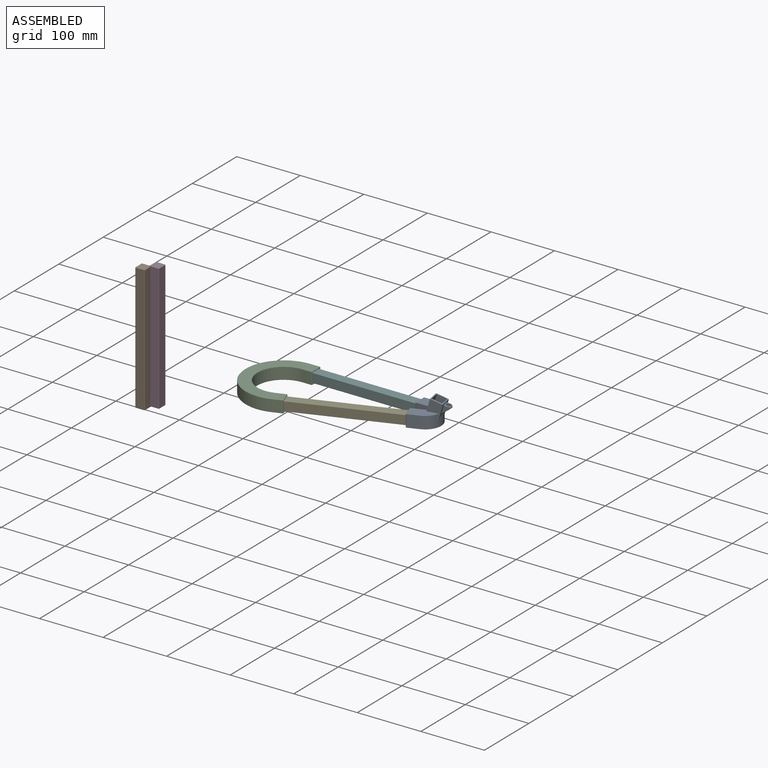
[diagram: assembled view]
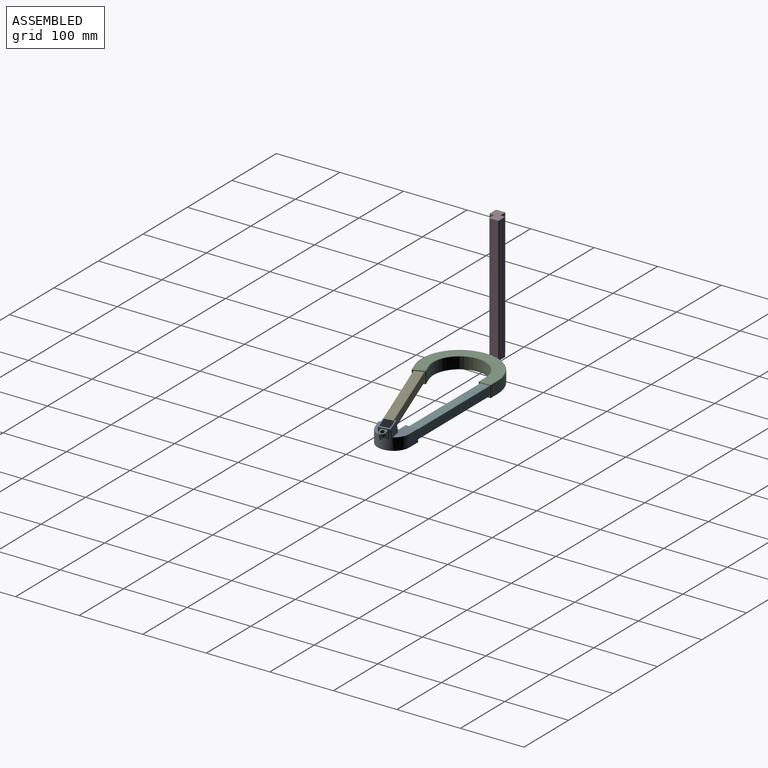
[diagram: assembled view, second angle]
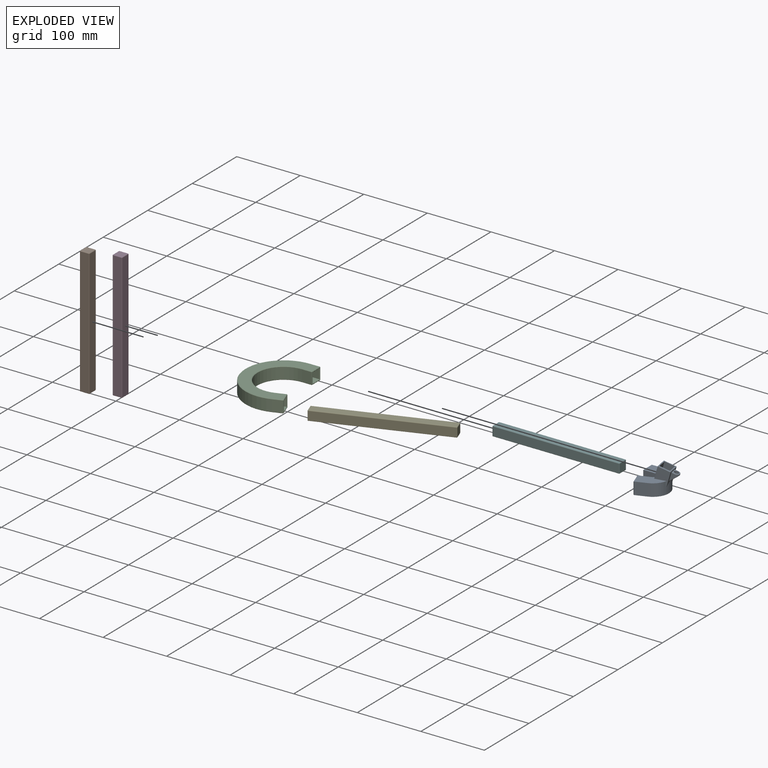
[diagram: exploded view]
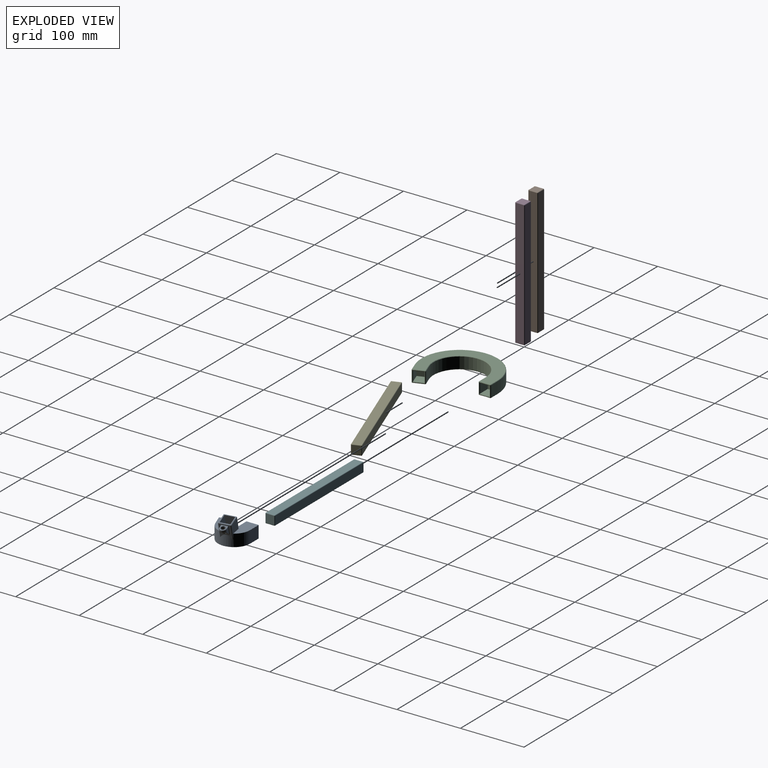
[diagram: exploded view, second angle]
ASSEMBLY  parts=6 mates=3
PART A: 85 faces, bbox 58.4x55.4x38.5 mm
  f0: cylinder r=25.2mm len=48.88mm, axis (0,0,-1), area 1243.4mm2, adj f1,f5,f6,f8,f9,f64,f65,f66
  f1: plane 40.31x22.35mm, normal (0,0,1), area 600.1mm2, adj f0,f6,f7,f20,f34,f35,f36,f44
  f2: plane 18x16.91mm, normal (-0.94,-0.34,0), area 86.8mm2, adj f15,f16,f17,f18,f47,f48,f49,f50
  f3: plane 18x18mm, normal (-1,0,0), area 86.8mm2, adj f10,f11,f12,f13,f43,f44,f45,f46
  f4: plane 19.2x17.5mm, normal (-0.34,0.94,0), area 357.5mm2, adj f8,f9,f20,f49
  f5: plane 19.2x17.5mm, normal (0.34,-0.94,0), area 357.5mm2, adj f0,f8,f9,f48
  f6: plane 19.24x19.2mm, normal (0,1,0), area 369.3mm2, adj f0,f1,f9,f46
  f7: plane 19.24x19.2mm, normal (0,-1,0), area 369.3mm2, adj f1,f9,f20,f43
  f8: plane 39.99x29.17mm, normal (0,0,1), area 588.3mm2, adj f0,f4,f5,f20,f31,f32,f33,f47
  f9: plane 55.25x44.44mm, normal (0,0,-1), area 1563.3mm2, adj f0,f4,f5,f6,f7,f20,f45,f50
  f10: plane 19.6x15.4mm, normal (0,0,1), area 301.8mm2, adj f3,f11,f13,f14
  f11: plane 19.6x15.4mm, normal (0,1,0), area 301.8mm2, adj f3,f10,f12,f14
  f12: plane 19.6x15.4mm, normal (0,0,-1), area 301.8mm2, adj f3,f11,f13,f14
  f13: plane 19.6x15.4mm, normal (0,-1,0), area 301.8mm2, adj f3,f10,f12,f14
  f14: plane 15.4x15.4mm, normal (-1,0,0), area 237.2mm2, adj f10,f11,f12,f13
  f15: plane 22.18x20.63mm, normal (0,0,1), area 277.2mm2, adj f2,f16,f18,f19
  f16: plane 16.91x15.4mm, normal (-0.34,0.94,0), area 277.2mm2, adj f2,f15,f17,f19
  f17: plane 22.18x20.63mm, normal (0,0,-1), area 277.2mm2, adj f2,f16,f18,f19
  f18: plane 16.91x15.4mm, normal (0.34,-0.94,0), area 277.2mm2, adj f2,f15,f17,f19
  f19: plane 15.4x14.47mm, normal (-0.94,-0.34,0), area 237.2mm2, adj f15,f16,f17,f18
  f20: cylinder r=6mm len=19.2mm, axis (0,0,1), area 321.7mm2, adj f1,f4,f7,f8,f9,f30,f37
  f21: plane 18.88x17.94mm, normal (-0.95,-0.17,0.26), area 328.8mm2, adj f27,f29,f30,f31,f36,f37,f54
  f22: plane 21.59x17.94mm, normal (0.95,0.17,-0.26), area 142.4mm2, adj f26,f28,f55,f66,f72,f74,f75,f78
  f23: plane 20.62x20.12mm, normal (0.25,0.04,0.97), area 89.8mm2, adj f38,f39,f40,f41,f51,f52,f53,f54
  f24: plane 21.77x21.13mm, normal (0.17,-0.98,0), area 284.1mm2, adj f28,f29,f33,f51,f68
  f25: plane 21.77x21.13mm, normal (-0.17,0.98,0), area 284.1mm2, adj f26,f27,f34,f58,f64
  f26: cylinder r=1mm len=22.34mm, axis (0.25,0.04,0.97), area 33.8mm2, adj f22,f25,f57,f65
  f27: cylinder r=1mm len=18.7mm, axis (-0.25,-0.04,-0.97), area 29.7mm2, adj f21,f25,f35,f56
  f28: cylinder r=1mm len=22.34mm, axis (-0.25,-0.04,-0.97), area 33.8mm2, adj f22,f24,f53,f67
  f29: cylinder r=1mm len=18.7mm, axis (0.25,0.04,0.97), area 29.7mm2, adj f21,f24,f32,f52
  f30: bspline ~2.19x0.47mm, area 0.3mm2, adj f20,f21,f31
  f31: cylinder r=0.4mm len=6.67mm, axis (0.17,-0.98,0), area 3.5mm2, adj f8,f21,f30,f32
  f32: bspline ~1.94x1.39mm, area 1mm2, adj f8,f29,f31,f33
  f33: cylinder r=0.4mm len=16.63mm, axis (-0.98,-0.17,0), area 10.3mm2, adj f8,f24,f32,f68
  f34: cylinder r=0.4mm len=16.63mm, axis (0.98,0.17,0), area 10.3mm2, adj f1,f25,f35,f64
  f35: bspline ~1.91x1.27mm, area 1.1mm2, adj f1,f27,f34,f36
  f36: cylinder r=0.4mm len=6.67mm, axis (0.17,-0.98,0), area 3.5mm2, adj f1,f21,f35,f37
  f37: bspline ~2.17x0.77mm, area 0.3mm2, adj f20,f21,f36
  f38: plane 20.28x16.01mm, normal (-0.95,-0.17,0.26), area 321.3mm2, adj f23,f39,f41,f42
  f39: plane 24.24x19.91mm, normal (0.17,-0.98,0), area 321.3mm2, adj f23,f38,f40,f42
  f40: plane 20.28x16.01mm, normal (0.95,0.17,-0.26), area 321.3mm2, adj f23,f39,f41,f42
  f41: plane 24.24x19.91mm, normal (-0.17,0.98,0), area 321.3mm2, adj f23,f38,f40,f42
  f42: plane 17.63x17.21mm, normal (0.25,0.04,0.97), area 234.1mm2, adj f38,f39,f40,f41
  f43: plane 19.2x0.6mm, normal (-0.71,-0.71,0), area 15.8mm2, adj f3,f7,f44,f45
  f44: plane 19.2x0.6mm, normal (-0.71,0,0.71), area 15.8mm2, adj f1,f3,f43,f46
  f45: plane 19.2x0.6mm, normal (-0.71,0,-0.71), area 15.8mm2, adj f3,f9,f43,f46
  f46: plane 19.2x0.6mm, normal (-0.71,0.71,0), area 15.8mm2, adj f3,f6,f44,f45
  f47: plane 18.04x6.93mm, normal (-0.66,-0.24,0.71), area 15.8mm2, adj f2,f8,f48,f49
  f48: plane 19.2x0.77mm, normal (-0.42,-0.91,0), area 15.8mm2, adj f2,f5,f47,f50
  f49: plane 19.2x0.77mm, normal (-0.91,0.42,0), area 15.8mm2, adj f2,f4,f47,f50
  f50: plane 18.04x6.93mm, normal (-0.66,-0.24,-0.71), area 15.8mm2, adj f2,f9,f48,f49
  f51: plane 16.41x5.03mm, normal (0.3,-0.66,0.68), area 14.6mm2, adj f23,f24,f52,f53
  f52: cone r=0.4mm half-angle=45deg, axis (-0.25,-0.04,-0.97), area 0.9mm2, adj f23,f29,f51,f54
  f53: cone r=0.4mm half-angle=45deg, axis (-0.25,-0.04,-0.97), area 0.9mm2, adj f23,f28,f51,f55
  f54: plane 17.07x3.71mm, normal (-0.49,-0.09,0.87), area 14.6mm2, adj f21,f23,f52,f56
  f55: plane 17.01x3.4mm, normal (0.85,0.15,0.5), area 14.6mm2, adj f22,f23,f53,f57
  f56: cone r=0.4mm half-angle=45deg, axis (-0.25,-0.04,-0.97), area 0.9mm2, adj f23,f27,f54,f58
  f57: cone r=0.4mm half-angle=45deg, axis (-0.25,-0.04,-0.97), area 0.9mm2, adj f23,f26,f55,f58
  f58: plane 16.62x5.03mm, normal (0.06,0.73,0.68), area 14.6mm2, adj f23,f25,f56,f57
  f59: plane 10.55x6.59mm, normal (-0.17,0.98,0), area 34.1mm2, adj f62,f73,f79,f80
  f60: plane 9.4x8.82mm, normal (0.25,0.04,0.97), area 29.3mm2, adj f63,f76,f77,f80,f83
  f61: plane 10.55x6.59mm, normal (0.17,-0.98,0), area 34.1mm2, adj f62,f71,f77,f78
  f62: cylinder r=5.2mm len=10.59mm, axis (0.25,0.04,0.97), area 46mm2, adj f59,f61,f70,f76
  f63: cylinder r=3.4mm len=13.35mm, axis (0.25,0.04,0.97), area 148.5mm2, adj f60,f84
  f64: cylinder r=1mm len=3.69mm, axis (0,0,-1), area 4mm2, adj f0,f1,f25,f34,f65
  f65: bspline ~6.58x1.99mm, area 4.3mm2, adj f0,f26,f64,f66
  f66: bspline ~16.94x5.67mm, area 6.9mm2, adj f0,f22,f65,f67
  f67: bspline ~6.58x2.28mm, area 4.3mm2, adj f0,f28,f66,f68
  f68: cylinder r=1mm len=3.69mm, axis (0,0,-1), area 4mm2, adj f0,f8,f24,f33,f67
  f69: plane 12.9x9.93mm, normal (0.56,0.1,-0.82), area 32.6mm2, adj f70,f71,f72,f73,f84
  f70: bspline ~10.36x7.25mm, area 16.4mm2, adj f62,f69,f71,f73
  f71: cylinder r=0.8mm len=6.89mm, axis (0.81,0.14,0.57), area 9mm2, adj f61,f69,f70,f74
  f72: cylinder r=0.8mm len=8.72mm, axis (-0.17,0.98,0), area 4.9mm2, adj f22,f69,f74,f75
  f73: cylinder r=0.8mm len=7.15mm, axis (-0.81,-0.14,-0.57), area 9mm2, adj f59,f69,f70,f75
  f74: bspline ~2.82x1.76mm, area 2.4mm2, adj f22,f71,f72,f78
  f75: bspline ~2.4x1.69mm, area 2.4mm2, adj f22,f72,f73,f79
  f76: torus R=4.4mm, axis (0.25,0.04,0.97), area 19.4mm2, adj f60,f62,f77,f80
  f77: cylinder r=0.8mm len=3.91mm, axis (-0.95,-0.17,0.26), area 5mm2, adj f60,f61,f76,f81
  f78: cylinder r=0.8mm len=10.75mm, axis (-0.25,-0.04,-0.97), area 13.7mm2, adj f22,f61,f74,f81
  f79: cylinder r=0.8mm len=10.75mm, axis (0.25,0.04,0.97), area 13.7mm2, adj f22,f59,f75,f82
  f80: cylinder r=0.8mm len=4.15mm, axis (-0.95,-0.17,0.26), area 5mm2, adj f59,f60,f76,f82
  f81: torus R=1.6mm, axis (0.95,0.17,-0.26), area 2.2mm2, adj f22,f77,f78,f83
  f82: torus R=1.6mm, axis (0.95,0.17,-0.26), area 2.2mm2, adj f22,f79,f80,f83
  f83: cylinder r=0.8mm len=8.77mm, axis (0.17,-0.98,0), area 11.1mm2, adj f22,f60,f81,f82
  f84: bspline ~10.63x8.47mm, area 38.9mm2, adj f63,f69
PART B: 26 faces, bbox 15x15x200 mm
  f0: plane 198.4x13.4mm, normal (1,0,0), area 2658.6mm2, adj f14,f19,f22,f25
  f1: plane 198.4x13.4mm, normal (0,1,0), area 2658.6mm2, adj f11,f20,f21,f25
  f2: plane 198.4x13.4mm, normal (-1,0,0), area 2658.6mm2, adj f6,f10,f11,f12
  f3: plane 198.4x13.4mm, normal (0,-1,0), area 2658.6mm2, adj f6,f9,f13,f14
  f4: plane 13.4x13.4mm, normal (0,0,1), area 179.6mm2, adj f9,f10,f19,f20
  f5: plane 13.4x13.4mm, normal (0,0,-1), area 179.6mm2, adj f12,f13,f21,f22
  f6: cylinder r=0.8mm len=198.4mm, axis (0,0,-1), area 249.3mm2, adj f2,f3,f7,f8
  f7: sphere r=0.8mm, area 1mm2, adj f6,f9,f10
  f8: sphere r=0.8mm, area 1mm2, adj f6,f12,f13
  f9: cylinder r=0.8mm len=13.4mm, axis (-1,0,0), area 16.8mm2, adj f3,f4,f7,f15
  f10: cylinder r=0.8mm len=13.4mm, axis (0,1,0), area 16.8mm2, adj f2,f4,f7,f16
  f11: cylinder r=0.8mm len=198.4mm, axis (0,0,1), area 249.3mm2, adj f1,f2,f16,f17
  f12: cylinder r=0.8mm len=13.4mm, axis (0,-1,0), area 16.8mm2, adj f2,f5,f8,f17
  f13: cylinder r=0.8mm len=13.4mm, axis (1,0,0), area 16.8mm2, adj f3,f5,f8,f18
  f14: cylinder r=0.8mm len=198.4mm, axis (0,0,1), area 249.3mm2, adj f0,f3,f15,f18
  f15: sphere r=0.8mm, area 1mm2, adj f9,f14,f19
  f16: sphere r=0.8mm, area 1mm2, adj f10,f11,f20
  f17: sphere r=0.8mm, area 1mm2, adj f11,f12,f21
  f18: sphere r=0.8mm, area 1mm2, adj f13,f14,f22
  f19: cylinder r=0.8mm len=13.4mm, axis (0,-1,0), area 16.8mm2, adj f0,f4,f15,f23
  f20: cylinder r=0.8mm len=13.4mm, axis (1,0,0), area 16.8mm2, adj f1,f4,f16,f23
  f21: cylinder r=0.8mm len=13.4mm, axis (-1,0,0), area 16.8mm2, adj f1,f5,f17,f24
  f22: cylinder r=0.8mm len=13.4mm, axis (0,1,0), area 16.8mm2, adj f0,f5,f18,f24
  f23: sphere r=0.8mm, area 1mm2, adj f19,f20,f25
  f24: sphere r=0.8mm, area 1mm2, adj f21,f22,f25
  f25: cylinder r=0.8mm len=198.4mm, axis (0,0,-1), area 249.3mm2, adj f0,f1,f23,f24
PART C: 63 faces, bbox 97.9x124.8x19.2 mm
  f0: plane 118.8x94.19mm, normal (0,0,-1), area 1295.4mm2, adj f27,f28,f33,f38,f42,f44,f46,f47
  f1: plane 18x16.91mm, normal (0.94,0.34,0), area 48.4mm2, adj f25,f26,f37,f38,f48,f49,f50,f51
  f2: plane 18x18mm, normal (1,0,0), area 48.4mm2, adj f34,f35,f42,f43,f52,f53,f54,f55
  f3: cylinder r=40.8mm len=81.6mm, axis (0,0,-1), area 2563.5mm2, adj f7,f8,f21,f28
  f4: cylinder r=60mm len=120mm, axis (0,0,-1), area 3769.9mm2, adj f6,f9,f30,f46
  f5: plane 118.8x94.19mm, normal (0,0,1), area 3721.1mm2, adj f20,f21,f23,f24,f25,f30,f35,f36
  f6: plane 18x15.4mm, normal (0,1,0), area 277.2mm2, adj f4,f36,f43,f47
  f7: plane 18x15.4mm, normal (0,-1,0), area 277.2mm2, adj f3,f23,f33,f34
  f8: plane 18x14.47mm, normal (-0.34,0.94,0), area 277.2mm2, adj f3,f20,f26,f27
  f9: plane 18x14.47mm, normal (0.34,-0.94,0), area 277.2mm2, adj f4,f24,f37,f44
  f10: plane 17.4x15.4mm, normal (0,0,-1), area 268mm2, adj f11,f13,f14,f54
  f11: plane 17.4x15.4mm, normal (0,1,0), area 268mm2, adj f10,f12,f14,f52
  f12: plane 17.4x15.4mm, normal (0,0,1), area 268mm2, adj f11,f13,f14,f53
  f13: plane 17.4x15.4mm, normal (0,-1,0), area 268mm2, adj f10,f12,f14,f55
  f14: plane 15.4x15.4mm, normal (1,0,0), area 237.2mm2, adj f10,f11,f12,f13
  f15: plane 21.62x20.42mm, normal (0,0,-1), area 268mm2, adj f16,f18,f19,f50
  f16: plane 16.35x15.4mm, normal (-0.34,0.94,0), area 268mm2, adj f15,f17,f19,f48
  f17: plane 21.62x20.42mm, normal (0,0,1), area 268mm2, adj f16,f18,f19,f49
  f18: plane 16.35x15.4mm, normal (0.34,-0.94,0), area 268mm2, adj f15,f17,f19,f51
  f19: plane 15.4x14.47mm, normal (0.94,0.34,0), area 237.2mm2, adj f15,f16,f17,f18
  f20: plane 14.68x5.83mm, normal (-0.24,0.66,0.71), area 13.1mm2, adj f5,f8,f21,f22
  f21: cone r=40.8mm half-angle=45deg, axis (0,0,1), area 121.7mm2, adj f3,f5,f20,f23
  f22: plane 0.77x0.6mm, normal (0.35,0.74,0.58), area 0.3mm2, adj f20,f25,f26
  f23: plane 15.4x0.6mm, normal (0,-0.71,0.71), area 13.1mm2, adj f5,f7,f21,f29
  f24: plane 14.68x5.83mm, normal (0.24,-0.66,0.71), area 13.1mm2, adj f5,f9,f30,f31
  f25: plane 17.12x6.72mm, normal (0.66,0.24,0.71), area 15.3mm2, adj f1,f5,f22,f31
  f26: plane 18x0.77mm, normal (0.42,0.91,0), area 15.3mm2, adj f1,f8,f22,f32
  f27: plane 14.68x5.83mm, normal (-0.24,0.66,-0.71), area 13.1mm2, adj f0,f8,f28,f32
  f28: cone r=41.4mm half-angle=45deg, axis (0,0,-1), area 121.7mm2, adj f0,f3,f27,f33
  f29: plane 0.6x0.6mm, normal (0.58,-0.58,0.58), area 0.3mm2, adj f23,f34,f35
  f30: cone r=59.4mm half-angle=45deg, axis (0,0,-1), area 176.8mm2, adj f4,f5,f24,f36
  f31: plane 0.77x0.6mm, normal (0.74,-0.35,0.58), area 0.3mm2, adj f24,f25,f37
  f32: plane 0.77x0.6mm, normal (0.35,0.74,-0.58), area 0.3mm2, adj f26,f27,f38
  f33: plane 15.4x0.6mm, normal (0,-0.71,-0.71), area 13.1mm2, adj f0,f7,f28,f39
  f34: plane 18x0.6mm, normal (0.71,-0.71,0), area 15.3mm2, adj f2,f7,f29,f39
  f35: plane 18x0.6mm, normal (0.71,0,0.71), area 15.3mm2, adj f2,f5,f29,f40
  f36: plane 15.4x0.6mm, normal (0,0.71,0.71), area 13.1mm2, adj f5,f6,f30,f40
  f37: plane 18x0.77mm, normal (0.91,-0.42,0), area 15.3mm2, adj f1,f9,f31,f41
  f38: plane 17.12x6.72mm, normal (0.66,0.24,-0.71), area 15.3mm2, adj f0,f1,f32,f41
  f39: plane 0.6x0.6mm, normal (0.58,-0.58,-0.58), area 0.3mm2, adj f33,f34,f42
  f40: plane 0.6x0.6mm, normal (0.58,0.58,0.58), area 0.3mm2, adj f35,f36,f43
  f41: plane 0.77x0.6mm, normal (0.74,-0.35,-0.58), area 0.3mm2, adj f37,f38,f44
  f42: plane 18x0.6mm, normal (0.71,0,-0.71), area 15.3mm2, adj f0,f2,f39,f45
  f43: plane 18x0.6mm, normal (0.71,0.71,0), area 15.3mm2, adj f2,f6,f40,f45
  f44: plane 14.68x5.83mm, normal (0.24,-0.66,-0.71), area 13.1mm2, adj f0,f9,f41,f46
  f45: plane 0.6x0.6mm, normal (0.58,0.58,-0.58), area 0.3mm2, adj f42,f43,f47
  f46: cone r=60mm half-angle=45deg, axis (0,0,1), area 176.8mm2, adj f0,f4,f44,f47
  f47: plane 15.4x0.6mm, normal (0,0.71,-0.71), area 13.1mm2, adj f0,f6,f45,f46
  f48: plane 16.6x0.77mm, normal (0.42,0.91,0), area 13.6mm2, adj f1,f16,f49,f50
  f49: plane 15.6x6.04mm, normal (0.66,0.24,0.71), area 13.6mm2, adj f1,f17,f48,f51
  f50: plane 15.6x6.04mm, normal (0.66,0.24,-0.71), area 13.6mm2, adj f1,f15,f48,f51
  f51: plane 16.6x0.77mm, normal (0.91,-0.42,0), area 13.6mm2, adj f1,f18,f49,f50
  f52: plane 16.6x0.6mm, normal (0.71,0.71,0), area 13.6mm2, adj f2,f11,f53,f54
  f53: plane 16.6x0.6mm, normal (0.71,0,0.71), area 13.6mm2, adj f2,f12,f52,f55
  f54: plane 16.6x0.6mm, normal (0.71,0,-0.71), area 13.6mm2, adj f2,f10,f52,f55
  f55: plane 16.6x0.6mm, normal (0.71,-0.71,0), area 13.6mm2, adj f2,f13,f53,f54
  f56: plane 16.2x14.91mm, normal (-1,0,0), area 230.7mm2, adj f0,f57,f59,f60,f61,f62
  f57: cylinder r=43mm len=85.58mm, axis (0,0,-1), area 1546.3mm2, adj f0,f56,f58,f61
  f58: plane 16.2x14.01mm, normal (-0.94,-0.34,0), area 230.7mm2, adj f0,f57,f59,f60,f61,f62
  f59: cylinder r=57.8mm len=115.29mm, axis (0,0,-1), area 2125.1mm2, adj f0,f56,f58,f62
  f60: plane 105.26x65.1mm, normal (0,0,-1), area 786.7mm2, adj f56,f58,f61,f62
  f61: torus R=48mm, axis (0,0,-1), area 1134.2mm2, adj f56,f57,f58,f60
  f62: torus R=52.8mm, axis (0,0,-1), area 1440.4mm2, adj f56,f58,f59,f60
PART D: same geometry as B
PART E: same geometry as B
PART F: same geometry as B
PLACE A t=(258.21,106.43,61.68)mm
PLACE B t=(-151.35,-7.9,19.23)mm
PLACE C t=(24.81,56.03,61.68)mm fixed
PLACE D t=(-136.12,2.42,21.52)mm
PLACE E rot(axis=(0.7,0.12,-0.7),165.9deg) t=(228.1,76.41,71.28)mm
PLACE F rot(axis=(0.71,0,-0.71),180deg) t=(222.81,106.43,71.28)mm
MATE planar F.f4 <-> C.f14  axis (-1,0,0) through (22.81,106.43,71.28)mm
MATE planar A.f14 <-> F.f5  axis (-1,0,0) through (222.81,106.43,71.28)mm
MATE planar E.f4 <-> C.f19  axis (-0.94,-0.34,0) through (40.16,8,71.28)mm
